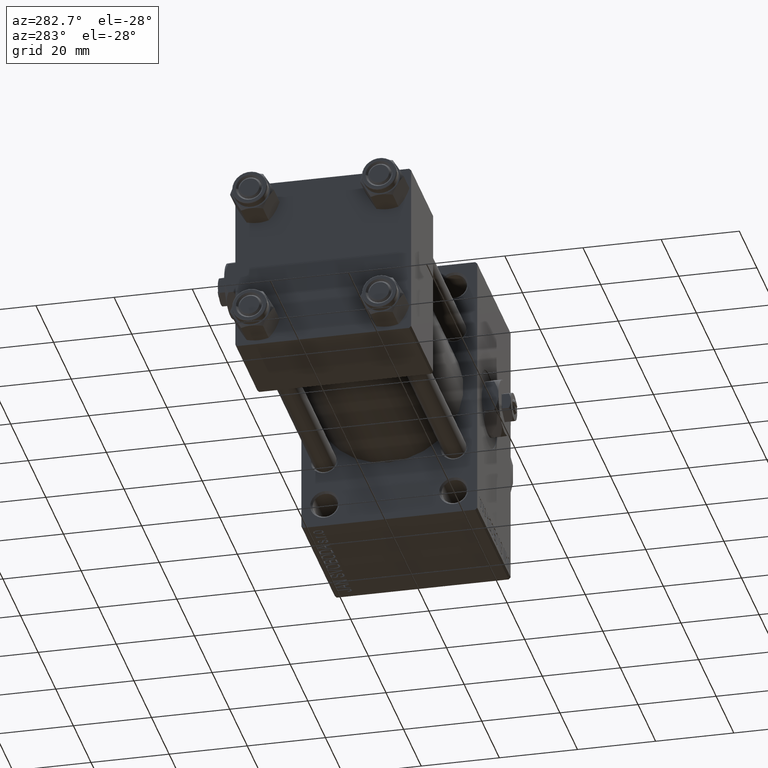
[diagram: clean part render]
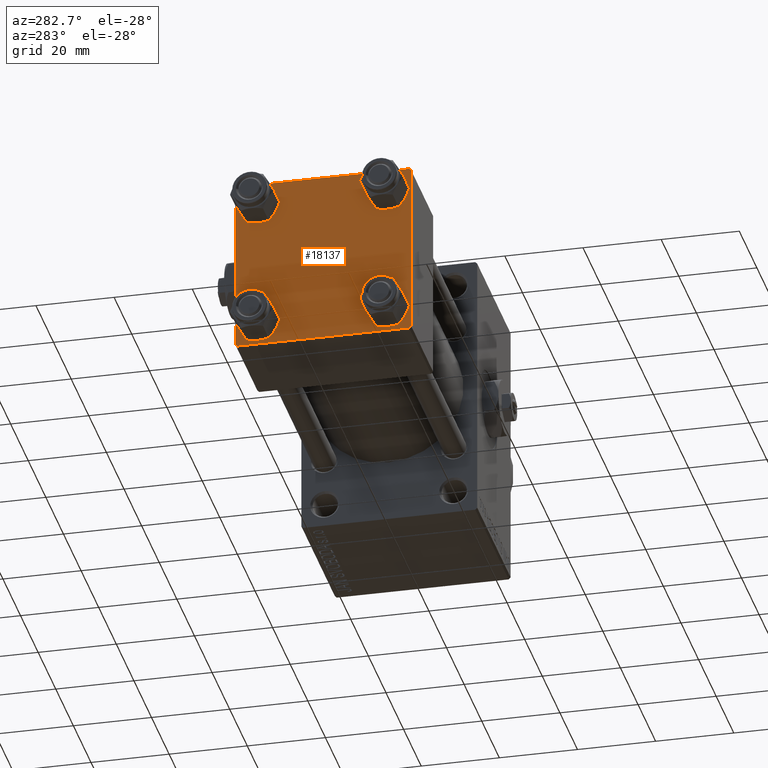
[diagram: same view with one face highlighted and labeled with its STEP entity id]
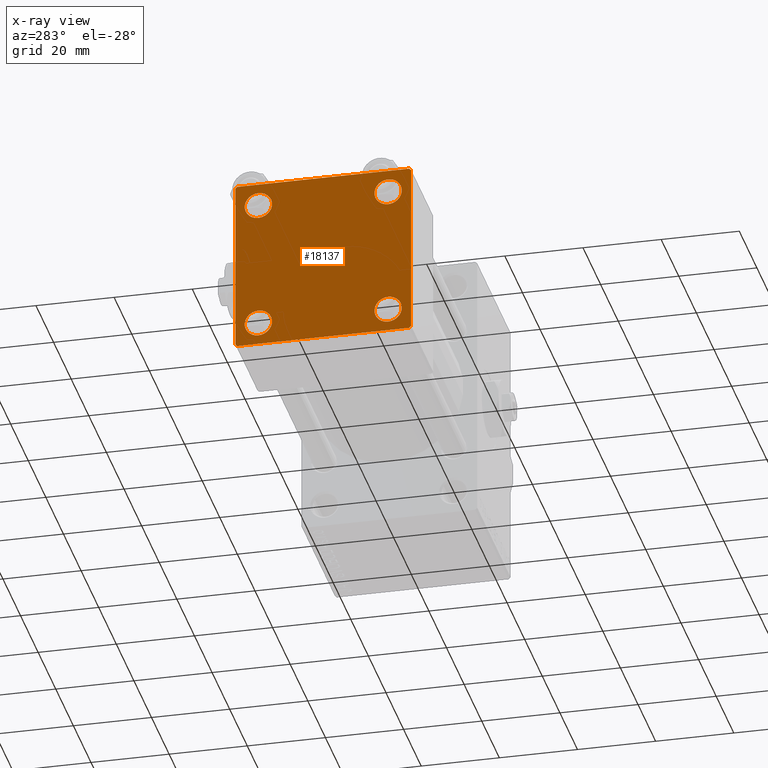
[diagram: x-ray of the same camera — body ghosted, the highlighted face saturated]
A machine part, auxiliary view. The second image highlights one B-rep face of the part: STEP entity #18137.
The next image is the same camera in x-ray: the body ghosted, the highlighted face saturated — about 0% of this face is hidden behind the body in this view.
In plain terms, the highlighted planar face has unit normal (-1, 0, 0).
Its self-contained STEP definition (entity closure, byte-faithful):
#28 = LINE ( 'NONE', #30031, #4593 ) ;
#865 = VERTEX_POINT ( 'NONE', #9599 ) ;
#1028 = DIRECTION ( 'NONE',  ( -0.000000000000000000, 0.000000000000000000, 1.000000000000000000 ) ) ;
#1512 = CARTESIAN_POINT ( 'NONE',  ( 0.000000000000000000, -22.50000000000000000, -21.99999999999997158 ) ) ;
#1750 = AXIS2_PLACEMENT_3D ( 'NONE', #10853, #25869, #21938 ) ;
#2322 = VERTEX_POINT ( 'NONE', #11210 ) ;
#2337 = CIRCLE ( 'NONE', #25130, 3.499999999999996003 ) ;
#2914 = CARTESIAN_POINT ( 'NONE',  ( 0.000000000000000000, 16.59999999999999787, 16.60000000000000497 ) ) ;
#3329 = CIRCLE ( 'NONE', #1750, 3.499999999999996003 ) ;
#4432 = DIRECTION ( 'NONE',  ( 0.000000000000000000, 0.000000000000000000, 1.000000000000000000 ) ) ;
#4450 = CARTESIAN_POINT ( 'NONE',  ( 0.000000000000000000, 22.50000000000000000, 22.50000000000000355 ) ) ;
#4593 = VECTOR ( 'NONE', #44504, 999.9999999999998863 ) ;
#5026 = EDGE_CURVE ( 'NONE', #34663, #41697, #47720, .T. ) ;
#5609 = EDGE_CURVE ( 'NONE', #2322, #47608, #28, .T. ) ;
#6471 = ORIENTED_EDGE ( 'NONE', *, *, #37159, .T. ) ;
#6773 = AXIS2_PLACEMENT_3D ( 'NONE', #43558, #32778, #44528 ) ;
#7005 = DIRECTION ( 'NONE',  ( -0.000000000000000000, -0.7071067811865426878, -0.7071067811865524577 ) ) ;
#7101 = DIRECTION ( 'NONE',  ( 1.000000000000000000, -0.000000000000000000, 0.000000000000000000 ) ) ;
#7460 = CARTESIAN_POINT ( 'NONE',  ( 0.000000000000000000, -21.99999999999997158, -22.50000000000000711 ) ) ;
#7588 = CARTESIAN_POINT ( 'NONE',  ( 0.000000000000000000, 16.59999999999999787, -16.60000000000000497 ) ) ;
#7851 = EDGE_LOOP ( 'NONE', ( #41885, #8711 ) ) ;
#8078 = CARTESIAN_POINT ( 'NONE',  ( 0.000000000000000000, -21.99999999999997868, 22.50000000000000000 ) ) ;
#8437 = DIRECTION ( 'NONE',  ( 1.000000000000000000, -0.000000000000000000, 0.000000000000000000 ) ) ;
#8522 = AXIS2_PLACEMENT_3D ( 'NONE', #2914, #32693, #26286 ) ;
#8640 = EDGE_LOOP ( 'NONE', ( #21570, #25592 ) ) ;
#8711 = ORIENTED_EDGE ( 'NONE', *, *, #33161, .T. ) ;
#8878 = DIRECTION ( 'NONE',  ( -1.000000000000000000, 0.000000000000000000, -0.000000000000000000 ) ) ;
#9591 = FACE_BOUND ( 'NONE', #31875, .T. ) ;
#9599 = CARTESIAN_POINT ( 'NONE',  ( 0.000000000000000000, 16.59999999999999787, -13.10000000000000675 ) ) ;
#9638 = CARTESIAN_POINT ( 'NONE',  ( 0.000000000000000000, -16.59999999999999076, -13.10000000000001030 ) ) ;
#10261 = AXIS2_PLACEMENT_3D ( 'NONE', #42536, #8878, #1028 ) ;
#10327 = DIRECTION ( 'NONE',  ( 1.000000000000000000, -0.000000000000000000, 0.000000000000000000 ) ) ;
#10370 = CARTESIAN_POINT ( 'NONE',  ( 0.000000000000000000, 22.50000000000000000, -21.99999999999996803 ) ) ;
#10842 = DIRECTION ( 'NONE',  ( 0.000000000000000000, 0.000000000000000000, -1.000000000000000000 ) ) ;
#10853 = CARTESIAN_POINT ( 'NONE',  ( 0.000000000000000000, 16.59999999999999787, -16.60000000000000497 ) ) ;
#10987 = DIRECTION ( 'NONE',  ( 0.000000000000000000, -0.7071067811865426878, 0.7071067811865524577 ) ) ;
#11210 = CARTESIAN_POINT ( 'NONE',  ( 0.000000000000000000, -22.50000000000000000, 22.00000000000000000 ) ) ;
#11651 = CARTESIAN_POINT ( 'NONE',  ( 0.000000000000000000, -16.59999999999999076, 16.60000000000000853 ) ) ;
#11999 = EDGE_CURVE ( 'NONE', #2322, #18171, #30495, .T. ) ;
#12301 = DIRECTION ( 'NONE',  ( 1.000000000000000000, -0.000000000000000000, 0.000000000000000000 ) ) ;
#12895 = EDGE_CURVE ( 'NONE', #26915, #37817, #48438, .T. ) ;
#13988 = VERTEX_POINT ( 'NONE', #27394 ) ;
#14475 = CARTESIAN_POINT ( 'NONE',  ( 0.000000000000000000, -16.59999999999999076, -16.60000000000000853 ) ) ;
#14775 = LINE ( 'NONE', #29779, #29387 ) ;
#15004 = VECTOR ( 'NONE', #39795, 1000.000000000000114 ) ;
#15151 = CARTESIAN_POINT ( 'NONE',  ( 0.000000000000000000, -22.25000000000014566, -22.24999999999984013 ) ) ;
#15350 = ORIENTED_EDGE ( 'NONE', *, *, #22015, .T. ) ;
#15967 = CIRCLE ( 'NONE', #37171, 3.499999999999996003 ) ;
#16048 = EDGE_CURVE ( 'NONE', #20277, #865, #2337, .T. ) ;
#16176 = CIRCLE ( 'NONE', #6773, 3.499999999999996003 ) ;
#16747 = FACE_BOUND ( 'NONE', #33621, .T. ) ;
#17138 = ORIENTED_EDGE ( 'NONE', *, *, #48618, .T. ) ;
#18137 = ADVANCED_FACE ( 'NONE', ( #43017, #9591, #46702, #16747, #35679 ), #35435, .T. ) ;
#18168 = CARTESIAN_POINT ( 'NONE',  ( 0.000000000000000000, 22.50000000000000000, -22.49999999999999645 ) ) ;
#18171 = VERTEX_POINT ( 'NONE', #1512 ) ;
#18235 = VERTEX_POINT ( 'NONE', #25348 ) ;
#18497 = AXIS2_PLACEMENT_3D ( 'NONE', #11651, #8437, #45052 ) ;
#19340 = VECTOR ( 'NONE', #7005, 1000.000000000000000 ) ;
#19377 = VECTOR ( 'NONE', #32192, 1000.000000000000000 ) ;
#19710 = EDGE_CURVE ( 'NONE', #39865, #26915, #28034, .T. ) ;
#19894 = CARTESIAN_POINT ( 'NONE',  ( 0.000000000000000000, 16.59999999999999787, 13.10000000000000675 ) ) ;
#20277 = VERTEX_POINT ( 'NONE', #33113 ) ;
#20372 = CARTESIAN_POINT ( 'NONE',  ( 0.000000000000000000, 22.50000000000000000, 21.99999999999999645 ) ) ;
#20882 = LINE ( 'NONE', #18168, #19377 ) ;
#21169 = VECTOR ( 'NONE', #10842, 1000.000000000000000 ) ;
#21461 = CIRCLE ( 'NONE', #43386, 3.499999999999996003 ) ;
#21570 = ORIENTED_EDGE ( 'NONE', *, *, #37927, .T. ) ;
#21786 = ORIENTED_EDGE ( 'NONE', *, *, #11999, .F. ) ;
#21938 = DIRECTION ( 'NONE',  ( 0.000000000000000000, 0.000000000000000000, 1.000000000000000000 ) ) ;
#22015 = EDGE_CURVE ( 'NONE', #25225, #18171, #29192, .T. ) ;
#22135 = DIRECTION ( 'NONE',  ( 0.000000000000000000, 0.000000000000000000, 1.000000000000000000 ) ) ;
#22422 = CIRCLE ( 'NONE', #18497, 3.499999999999996003 ) ;
#23886 = CARTESIAN_POINT ( 'NONE',  ( 0.000000000000000000, 21.99999999999999289, 22.50000000000000355 ) ) ;
#23897 = ORIENTED_EDGE ( 'NONE', *, *, #45996, .T. ) ;
#25130 = AXIS2_PLACEMENT_3D ( 'NONE', #7588, #10327, #22135 ) ;
#25220 = CARTESIAN_POINT ( 'NONE',  ( 0.000000000000000000, 22.25000000000014566, -22.24999999999984013 ) ) ;
#25225 = VERTEX_POINT ( 'NONE', #7460 ) ;
#25348 = CARTESIAN_POINT ( 'NONE',  ( 0.000000000000000000, 21.99999999999999289, -22.49999999999999645 ) ) ;
#25533 = CARTESIAN_POINT ( 'NONE',  ( 0.000000000000000000, -16.59999999999999076, -20.10000000000000497 ) ) ;
#25592 = ORIENTED_EDGE ( 'NONE', *, *, #16048, .T. ) ;
#25869 = DIRECTION ( 'NONE',  ( 1.000000000000000000, -0.000000000000000000, 0.000000000000000000 ) ) ;
#26286 = DIRECTION ( 'NONE',  ( 0.000000000000000000, 0.000000000000000000, 1.000000000000000000 ) ) ;
#26376 = AXIS2_PLACEMENT_3D ( 'NONE', #14475, #7101, #41478 ) ;
#26915 = VERTEX_POINT ( 'NONE', #20372 ) ;
#27042 = ORIENTED_EDGE ( 'NONE', *, *, #12895, .T. ) ;
#27394 = CARTESIAN_POINT ( 'NONE',  ( 0.000000000000000000, -16.59999999999999076, 20.10000000000000853 ) ) ;
#27626 = VERTEX_POINT ( 'NONE', #9638 ) ;
#28034 = LINE ( 'NONE', #47149, #15004 ) ;
#29192 = LINE ( 'NONE', #15151, #31613 ) ;
#29387 = VECTOR ( 'NONE', #33701, 1000.000000000000000 ) ;
#29779 = CARTESIAN_POINT ( 'NONE',  ( 0.000000000000000000, 22.50000000000000000, 22.50000000000000355 ) ) ;
#30031 = CARTESIAN_POINT ( 'NONE',  ( -0.000000000000000000, -22.24999999999984013, 22.25000000000015277 ) ) ;
#30495 = LINE ( 'NONE', #44736, #21169 ) ;
#30995 = CARTESIAN_POINT ( 'NONE',  ( 0.000000000000000000, -16.59999999999999076, -16.60000000000000853 ) ) ;
#31121 = DIRECTION ( 'NONE',  ( 1.000000000000000000, -0.000000000000000000, 0.000000000000000000 ) ) ;
#31372 = VERTEX_POINT ( 'NONE', #38364 ) ;
#31593 = CARTESIAN_POINT ( 'NONE',  ( 0.000000000000000000, 16.59999999999999787, 16.60000000000000497 ) ) ;
#31613 = VECTOR ( 'NONE', #10987, 1000.000000000000000 ) ;
#31875 = EDGE_LOOP ( 'NONE', ( #6471, #23897 ) ) ;
#32192 = DIRECTION ( 'NONE',  ( 0.000000000000000000, -1.000000000000000000, -2.312964634635742957E-16 ) ) ;
#32693 = DIRECTION ( 'NONE',  ( 1.000000000000000000, -0.000000000000000000, 0.000000000000000000 ) ) ;
#32778 = DIRECTION ( 'NONE',  ( 1.000000000000000000, -0.000000000000000000, 0.000000000000000000 ) ) ;
#33082 = LINE ( 'NONE', #25220, #19340 ) ;
#33113 = CARTESIAN_POINT ( 'NONE',  ( 0.000000000000000000, 16.59999999999999787, -20.10000000000000142 ) ) ;
#33161 = EDGE_CURVE ( 'NONE', #31372, #13988, #22422, .T. ) ;
#33621 = EDGE_LOOP ( 'NONE', ( #42458, #40247 ) ) ;
#33701 = DIRECTION ( 'NONE',  ( 0.000000000000000000, -1.000000000000000000, -7.709882115452476934E-17 ) ) ;
#34663 = VERTEX_POINT ( 'NONE', #19894 ) ;
#35435 = PLANE ( 'NONE',  #10261 ) ;
#35679 = FACE_OUTER_BOUND ( 'NONE', #46461, .T. ) ;
#36539 = EDGE_CURVE ( 'NONE', #41697, #34663, #21461, .T. ) ;
#37159 = EDGE_CURVE ( 'NONE', #27626, #47782, #15967, .T. ) ;
#37171 = AXIS2_PLACEMENT_3D ( 'NONE', #30995, #12301, #4432 ) ;
#37569 = VECTOR ( 'NONE', #38373, 1000.000000000000000 ) ;
#37586 = ORIENTED_EDGE ( 'NONE', *, *, #46839, .T. ) ;
#37817 = VERTEX_POINT ( 'NONE', #10370 ) ;
#37927 = EDGE_CURVE ( 'NONE', #865, #20277, #3329, .T. ) ;
#38364 = CARTESIAN_POINT ( 'NONE',  ( 0.000000000000000000, -16.59999999999999076, 13.10000000000001030 ) ) ;
#38373 = DIRECTION ( 'NONE',  ( 0.000000000000000000, 0.000000000000000000, -1.000000000000000000 ) ) ;
#38956 = DIRECTION ( 'NONE',  ( 0.000000000000000000, 0.000000000000000000, 1.000000000000000000 ) ) ;
#39190 = CARTESIAN_POINT ( 'NONE',  ( 0.000000000000000000, 16.59999999999999787, 20.10000000000000142 ) ) ;
#39678 = CIRCLE ( 'NONE', #26376, 3.499999999999996003 ) ;
#39795 = DIRECTION ( 'NONE',  ( 0.000000000000000000, 0.7071067811865474617, -0.7071067811865474617 ) ) ;
#39865 = VERTEX_POINT ( 'NONE', #23886 ) ;
#40247 = ORIENTED_EDGE ( 'NONE', *, *, #5026, .T. ) ;
#41478 = DIRECTION ( 'NONE',  ( 0.000000000000000000, 0.000000000000000000, 1.000000000000000000 ) ) ;
#41697 = VERTEX_POINT ( 'NONE', #39190 ) ;
#41885 = ORIENTED_EDGE ( 'NONE', *, *, #47204, .T. ) ;
#42299 = EDGE_CURVE ( 'NONE', #39865, #47608, #14775, .T. ) ;
#42458 = ORIENTED_EDGE ( 'NONE', *, *, #36539, .T. ) ;
#42536 = CARTESIAN_POINT ( 'NONE',  ( 0.000000000000000000, 0.000000000000000000, 0.000000000000000000 ) ) ;
#43017 = FACE_BOUND ( 'NONE', #7851, .T. ) ;
#43134 = ORIENTED_EDGE ( 'NONE', *, *, #5609, .T. ) ;
#43163 = ORIENTED_EDGE ( 'NONE', *, *, #42299, .F. ) ;
#43386 = AXIS2_PLACEMENT_3D ( 'NONE', #31593, #31121, #38956 ) ;
#43558 = CARTESIAN_POINT ( 'NONE',  ( 0.000000000000000000, -16.59999999999999076, 16.60000000000000853 ) ) ;
#44003 = ORIENTED_EDGE ( 'NONE', *, *, #19710, .T. ) ;
#44504 = DIRECTION ( 'NONE',  ( -0.000000000000000000, 0.7071067811865525687, 0.7071067811865425767 ) ) ;
#44528 = DIRECTION ( 'NONE',  ( 0.000000000000000000, 0.000000000000000000, 1.000000000000000000 ) ) ;
#44736 = CARTESIAN_POINT ( 'NONE',  ( 0.000000000000000000, -22.50000000000000000, 22.50000000000000000 ) ) ;
#45052 = DIRECTION ( 'NONE',  ( 0.000000000000000000, 0.000000000000000000, 1.000000000000000000 ) ) ;
#45996 = EDGE_CURVE ( 'NONE', #47782, #27626, #39678, .T. ) ;
#46461 = EDGE_LOOP ( 'NONE', ( #27042, #37586, #17138, #15350, #21786, #43134, #43163, #44003 ) ) ;
#46702 = FACE_BOUND ( 'NONE', #8640, .T. ) ;
#46839 = EDGE_CURVE ( 'NONE', #37817, #18235, #33082, .T. ) ;
#47149 = CARTESIAN_POINT ( 'NONE',  ( 0.000000000000000000, 22.24999999999999645, 22.24999999999999645 ) ) ;
#47204 = EDGE_CURVE ( 'NONE', #13988, #31372, #16176, .T. ) ;
#47608 = VERTEX_POINT ( 'NONE', #8078 ) ;
#47720 = CIRCLE ( 'NONE', #8522, 3.499999999999996003 ) ;
#47782 = VERTEX_POINT ( 'NONE', #25533 ) ;
#48438 = LINE ( 'NONE', #4450, #37569 ) ;
#48618 = EDGE_CURVE ( 'NONE', #18235, #25225, #20882, .T. ) ;